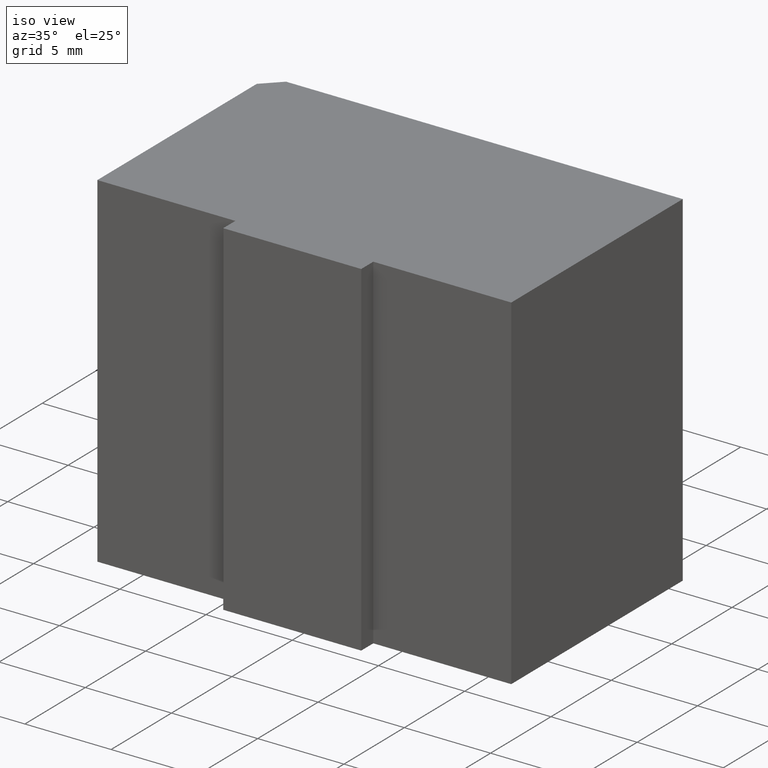
[diagram: clean part render]
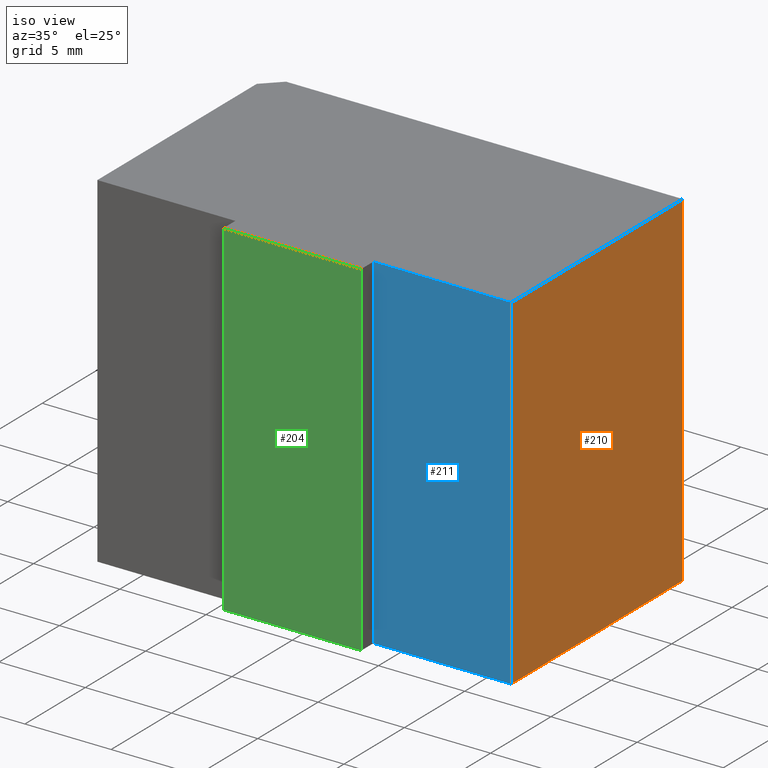
[diagram: same view with three faces highlighted in distinct colors, each labeled with its STEP entity id]
A machine part, iso view with three faces highlighted in distinct colors.
Their STEP definitions:

[orange] entity #210 — the highlighted planar face has unit normal (1, 0, 0).
#24=FACE_OUTER_BOUND('',#35,.T.);
#35=EDGE_LOOP('',(#174,#175,#176,#177));
#38=LINE('',#302,#65);
#61=LINE('',#347,#88);
#62=LINE('',#350,#89);
#63=LINE('',#351,#90);
#65=VECTOR('',#251,10.);
#88=VECTOR('',#288,10.);
#89=VECTOR('',#291,10.);
#90=VECTOR('',#292,10.);
#92=VERTEX_POINT('',#300);
#93=VERTEX_POINT('',#301);
#108=VERTEX_POINT('',#345);
#109=VERTEX_POINT('',#349);
#110=EDGE_CURVE('',#92,#93,#38,.T.);
#133=EDGE_CURVE('',#108,#93,#61,.T.);
#134=EDGE_CURVE('',#108,#109,#62,.T.);
#135=EDGE_CURVE('',#92,#109,#63,.T.);
#174=ORIENTED_EDGE('',*,*,#134,.T.);
#175=ORIENTED_EDGE('',*,*,#135,.F.);
#176=ORIENTED_EDGE('',*,*,#110,.T.);
#177=ORIENTED_EDGE('',*,*,#133,.F.);
#199=PLANE('',#244);
#210=ADVANCED_FACE('',(#24),#199,.T.);
#244=AXIS2_PLACEMENT_3D('',#348,#289,#290);
#251=DIRECTION('',(0.,1.,0.));
#288=DIRECTION('',(0.,0.,-1.));
#289=DIRECTION('center_axis',(1.,0.,0.));
#290=DIRECTION('ref_axis',(0.,0.,-1.));
#291=DIRECTION('',(0.,-1.,0.));
#292=DIRECTION('',(0.,0.,1.));
#300=CARTESIAN_POINT('',(12.,1.,-10.));
#301=CARTESIAN_POINT('',(12.,15.2,-10.));
#302=CARTESIAN_POINT('',(12.,15.2,-10.));
#345=CARTESIAN_POINT('',(12.,15.2,10.));
#347=CARTESIAN_POINT('',(12.,15.2,0.));
#348=CARTESIAN_POINT('Origin',(12.,15.2,0.));
#349=CARTESIAN_POINT('',(12.,1.,10.));
#350=CARTESIAN_POINT('',(12.,15.2,10.));
#351=CARTESIAN_POINT('',(12.,1.,0.));

[blue] entity #211 — the highlighted planar face has unit normal (-0, -1, 0).
#25=FACE_OUTER_BOUND('',#36,.T.);
#36=EDGE_LOOP('',(#178,#179,#180,#181));
#39=LINE('',#304,#66);
#49=LINE('',#323,#76);
#63=LINE('',#351,#90);
#64=LINE('',#353,#91);
#66=VECTOR('',#252,10.);
#76=VECTOR('',#264,10.);
#90=VECTOR('',#292,10.);
#91=VECTOR('',#295,10.);
#92=VERTEX_POINT('',#300);
#94=VERTEX_POINT('',#303);
#101=VERTEX_POINT('',#319);
#109=VERTEX_POINT('',#349);
#111=EDGE_CURVE('',#94,#92,#39,.T.);
#121=EDGE_CURVE('',#101,#94,#49,.T.);
#135=EDGE_CURVE('',#92,#109,#63,.T.);
#136=EDGE_CURVE('',#109,#101,#64,.T.);
#178=ORIENTED_EDGE('',*,*,#136,.T.);
#179=ORIENTED_EDGE('',*,*,#121,.T.);
#180=ORIENTED_EDGE('',*,*,#111,.T.);
#181=ORIENTED_EDGE('',*,*,#135,.T.);
#200=PLANE('',#245);
#211=ADVANCED_FACE('',(#25),#200,.T.);
#245=AXIS2_PLACEMENT_3D('',#352,#293,#294);
#252=DIRECTION('',(1.,-6.93889390390723E-17,0.));
#264=DIRECTION('',(0.,0.,-1.));
#292=DIRECTION('',(0.,0.,1.));
#293=DIRECTION('center_axis',(-6.93889390390723E-17,-1.,0.));
#294=DIRECTION('ref_axis',(0.,0.,-1.));
#295=DIRECTION('',(-1.,6.93889390390723E-17,0.));
#300=CARTESIAN_POINT('',(12.,1.,-10.));
#303=CARTESIAN_POINT('',(4.,1.,-10.));
#304=CARTESIAN_POINT('',(12.,1.,-10.));
#319=CARTESIAN_POINT('',(4.,1.,10.));
#323=CARTESIAN_POINT('',(4.,1.,0.));
#349=CARTESIAN_POINT('',(12.,1.,10.));
#351=CARTESIAN_POINT('',(12.,1.,0.));
#352=CARTESIAN_POINT('Origin',(12.,1.,0.));
#353=CARTESIAN_POINT('',(12.,1.,10.));

[green] entity #204 — the highlighted planar face has unit normal (0, -1, 0).
#18=FACE_OUTER_BOUND('',#29,.T.);
#29=EDGE_LOOP('',(#150,#151,#152,#153));
#41=LINE('',#308,#68);
#48=LINE('',#322,#75);
#50=LINE('',#326,#77);
#51=LINE('',#327,#78);
#68=VECTOR('',#254,10.);
#75=VECTOR('',#263,10.);
#77=VECTOR('',#267,10.);
#78=VECTOR('',#268,10.);
#95=VERTEX_POINT('',#305);
#96=VERTEX_POINT('',#307);
#102=VERTEX_POINT('',#320);
#103=VERTEX_POINT('',#325);
#113=EDGE_CURVE('',#96,#95,#41,.T.);
#120=EDGE_CURVE('',#102,#95,#48,.T.);
#122=EDGE_CURVE('',#102,#103,#50,.T.);
#123=EDGE_CURVE('',#103,#96,#51,.T.);
#150=ORIENTED_EDGE('',*,*,#122,.T.);
#151=ORIENTED_EDGE('',*,*,#123,.T.);
#152=ORIENTED_EDGE('',*,*,#113,.T.);
#153=ORIENTED_EDGE('',*,*,#120,.F.);
#193=PLANE('',#238);
#204=ADVANCED_FACE('',(#18),#193,.T.);
#238=AXIS2_PLACEMENT_3D('',#324,#265,#266);
#254=DIRECTION('',(1.,0.,0.));
#263=DIRECTION('',(0.,0.,-1.));
#265=DIRECTION('center_axis',(0.,-1.,0.));
#266=DIRECTION('ref_axis',(0.,0.,-1.));
#267=DIRECTION('',(-1.,0.,0.));
#268=DIRECTION('',(0.,0.,-1.));
#305=CARTESIAN_POINT('',(4.,5.48172618408671E-15,-10.));
#307=CARTESIAN_POINT('',(-4.,5.48172618408671E-15,-10.));
#308=CARTESIAN_POINT('',(4.,5.48172618408671E-15,-10.));
#320=CARTESIAN_POINT('',(4.,5.48172618408671E-15,10.));
#322=CARTESIAN_POINT('',(4.,5.48172618408671E-15,0.));
#324=CARTESIAN_POINT('Origin',(4.,5.48172618408671E-15,0.));
#325=CARTESIAN_POINT('',(-4.,5.48172618408671E-15,10.));
#326=CARTESIAN_POINT('',(4.,5.48172618408671E-15,10.));
#327=CARTESIAN_POINT('',(-4.,5.48172618408671E-15,0.));